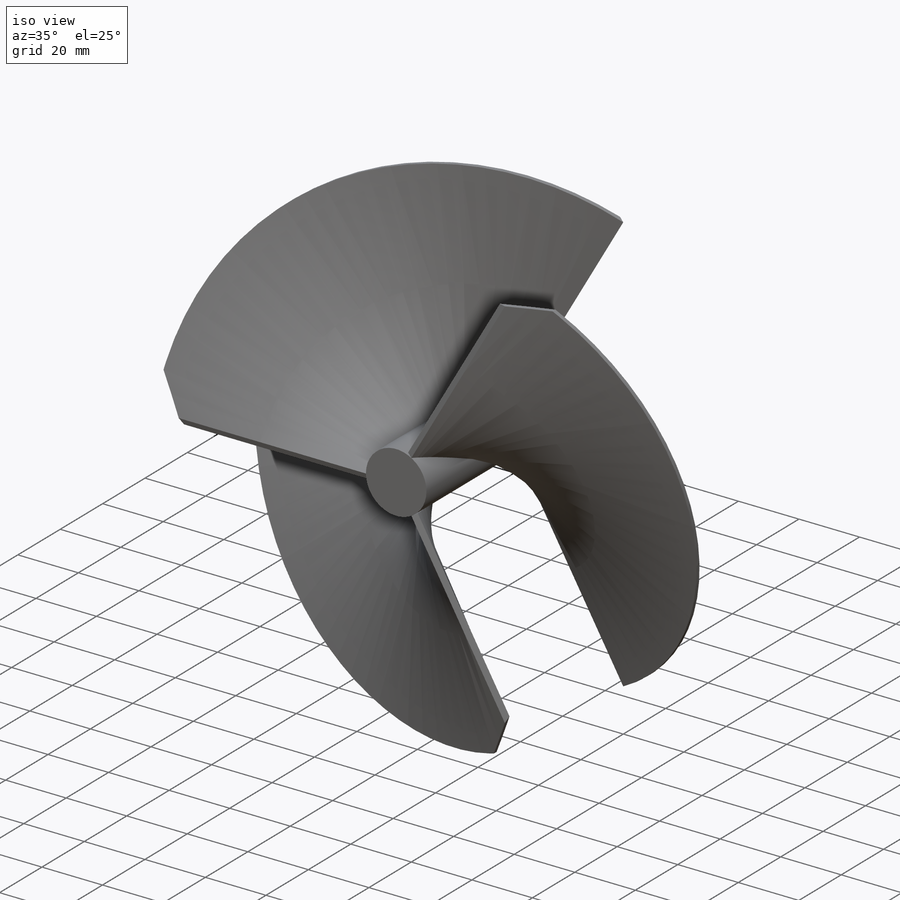
[diagram: iso view]
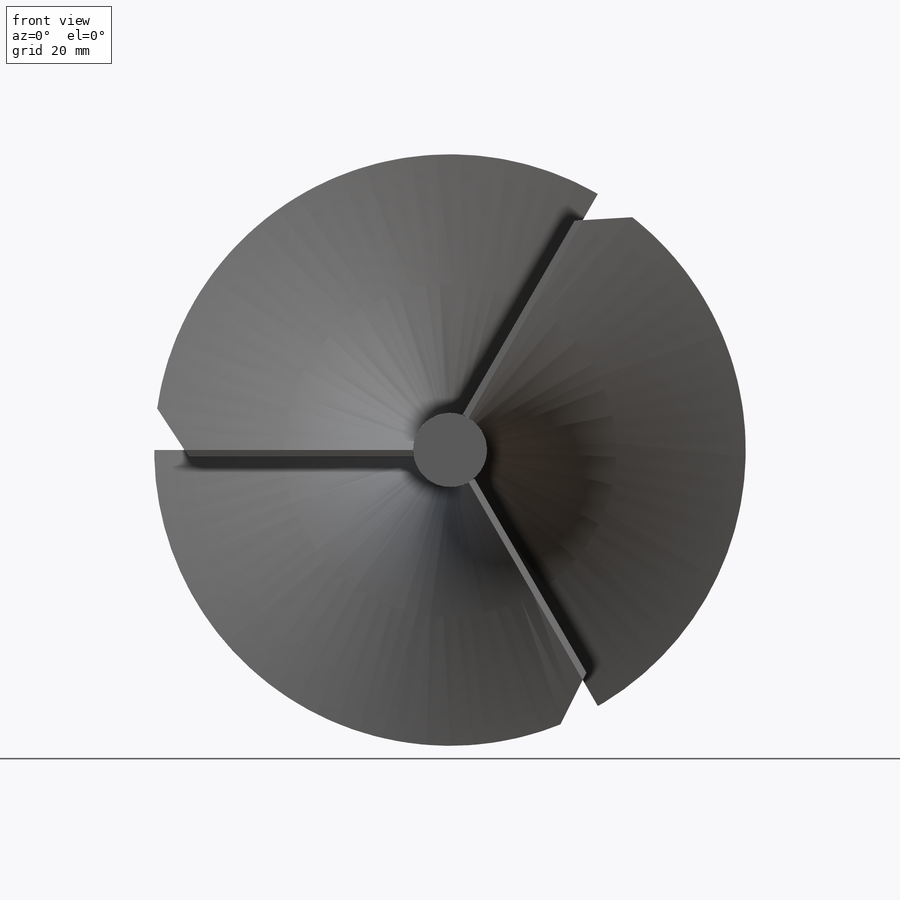
[diagram: front view]
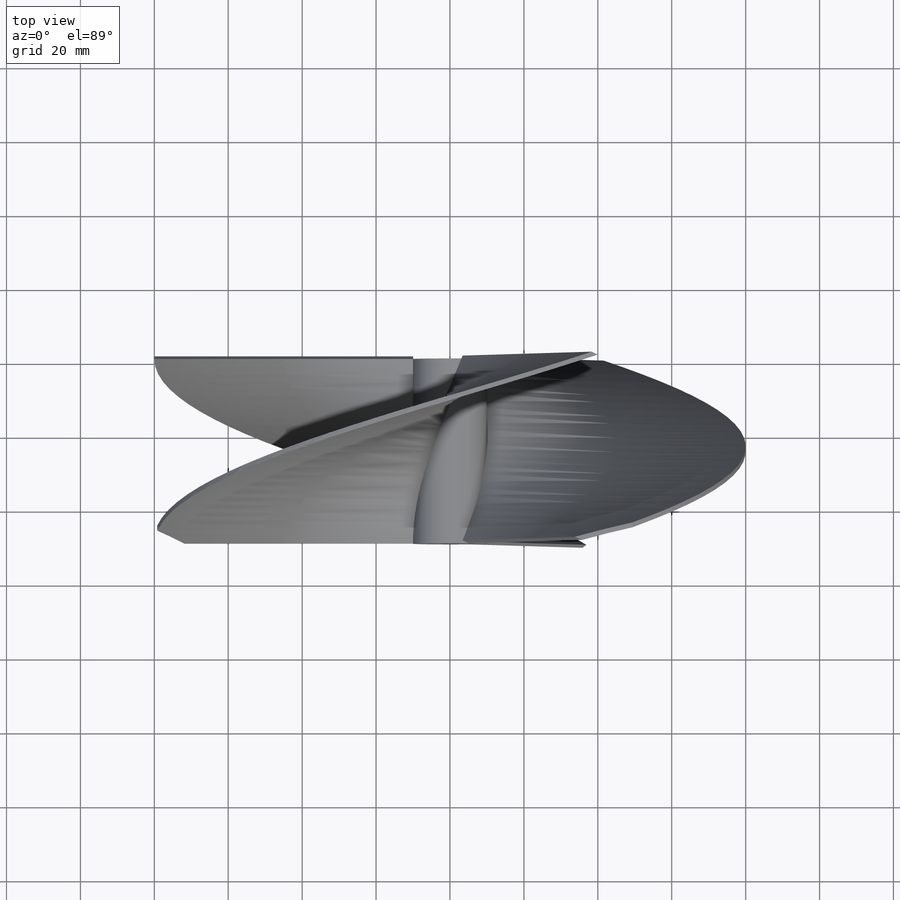
[diagram: top view]
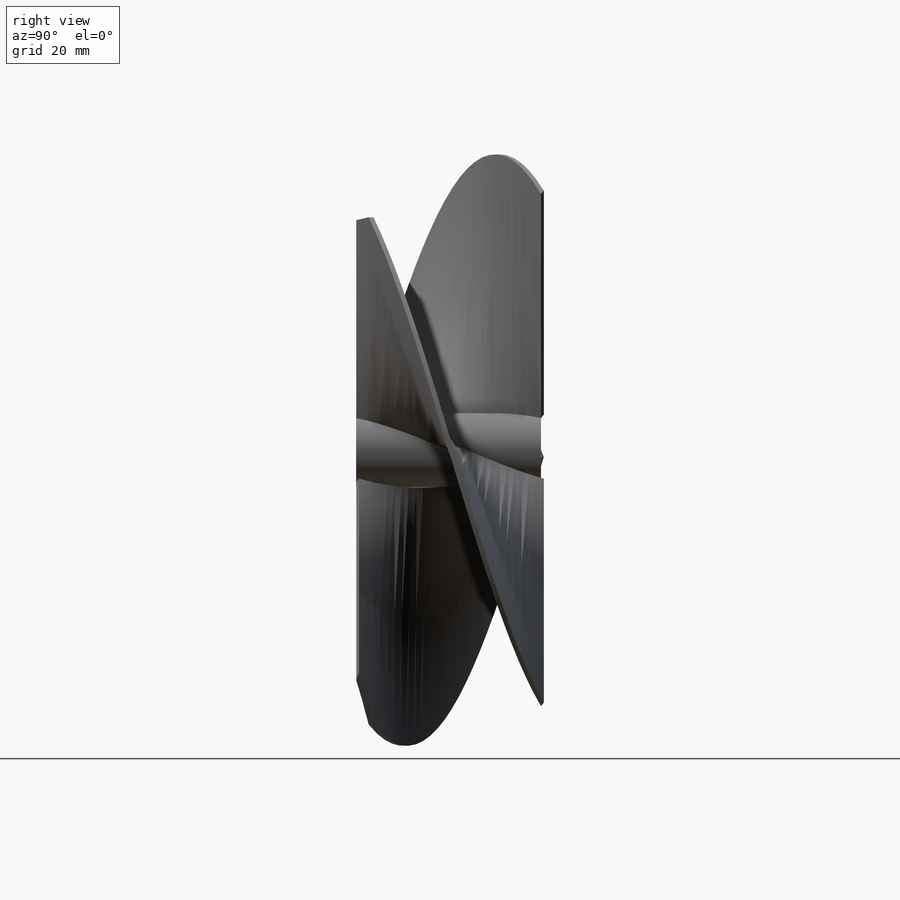
[diagram: right view]
SOLIDWORKS PART (.sldprt)
format: sldprt  version: not decoded by parser v0  size: 282,624 bytes
history: native  units: mm
features: plane x5, sketch x4, material x1, extrude x1, helix x1, sweep x1, cut_extrude x1, pattern_circular x1 (+9 scaffold rows collapsed)
feature tree (24):
  scaffold x9  (default folders/planes/origin — collapsed)
  material  "材质 <未指定>"
  plane  "前视基准面"
  plane  "上视基准面"
  plane  "右视基准面"
  sketch  "草图1"  dims[D1=5.0mm]
  extrude  "凸台-拉伸1"  Depth=50mm
  sketch  "草图2"
  helix  "螺旋线/涡状线1"  Pitch=49.995mm
  plane  "基准面1"
  sketch  "草图3"  dims[D1=70.0mm D2=2.0mm]
  sweep  "扫描1"
  plane  "基准面2"
  sketch  "草图5"
  cut_extrude  "切除-拉伸2"  Depth=40mm
  pattern_circular  "阵列(圆周)1"  Count=3  [1 undecoded]
decode coverage: 6 of 9 modeling features carry decoded parameters
note: 1 parameter value undecoded
note: suppression state not decoded; provenance and decode notes live in map.json
